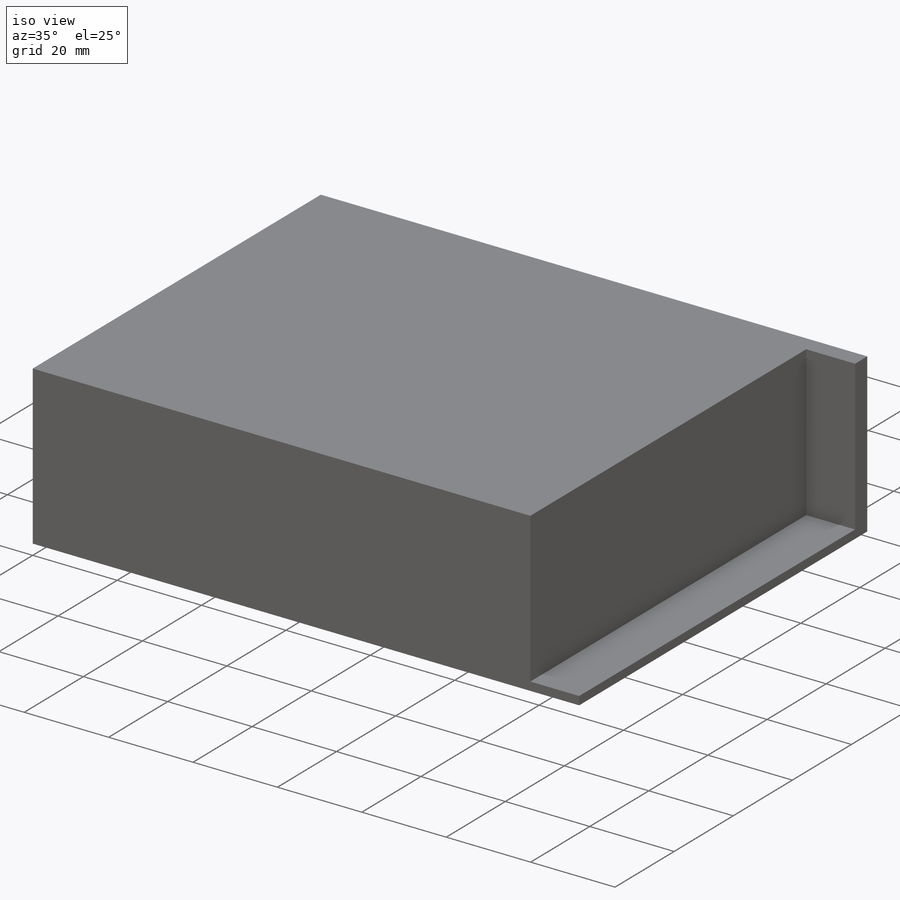
[diagram: iso view]
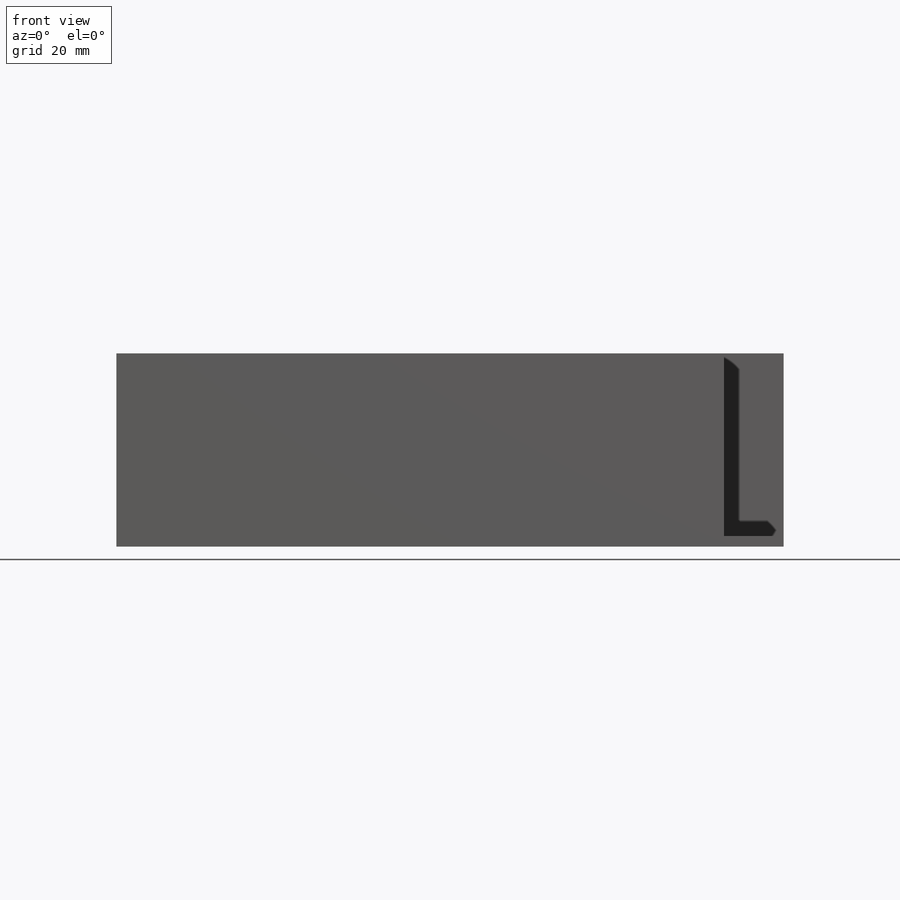
[diagram: front view]
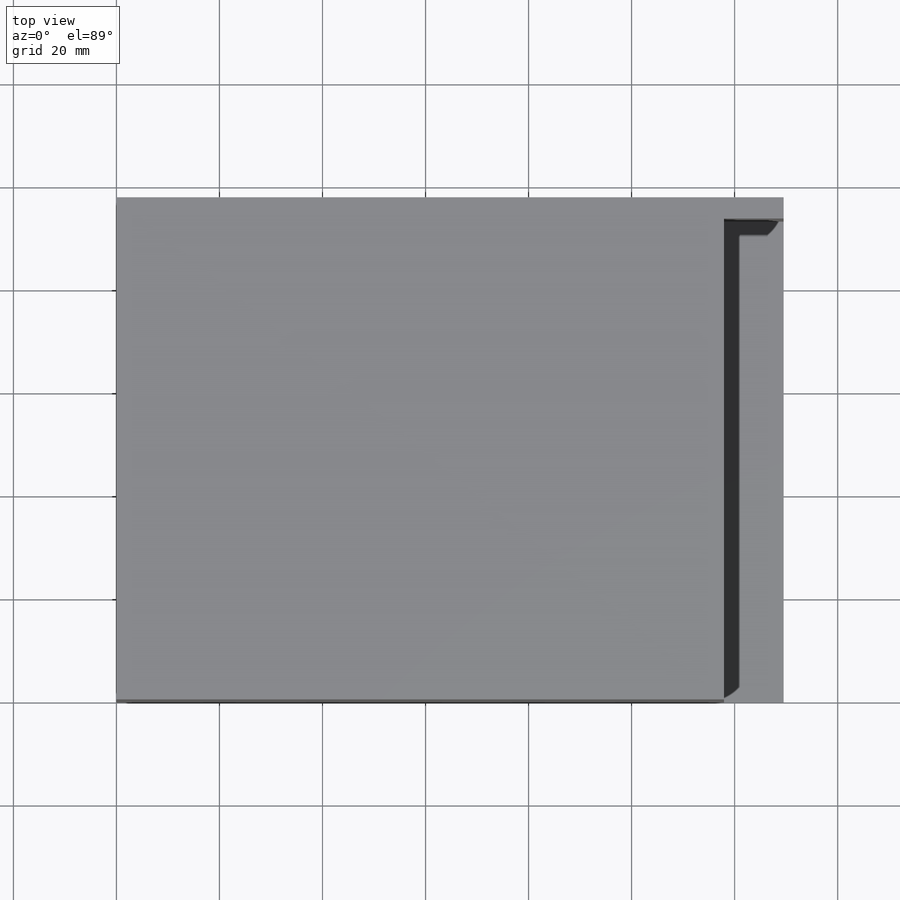
[diagram: top view]
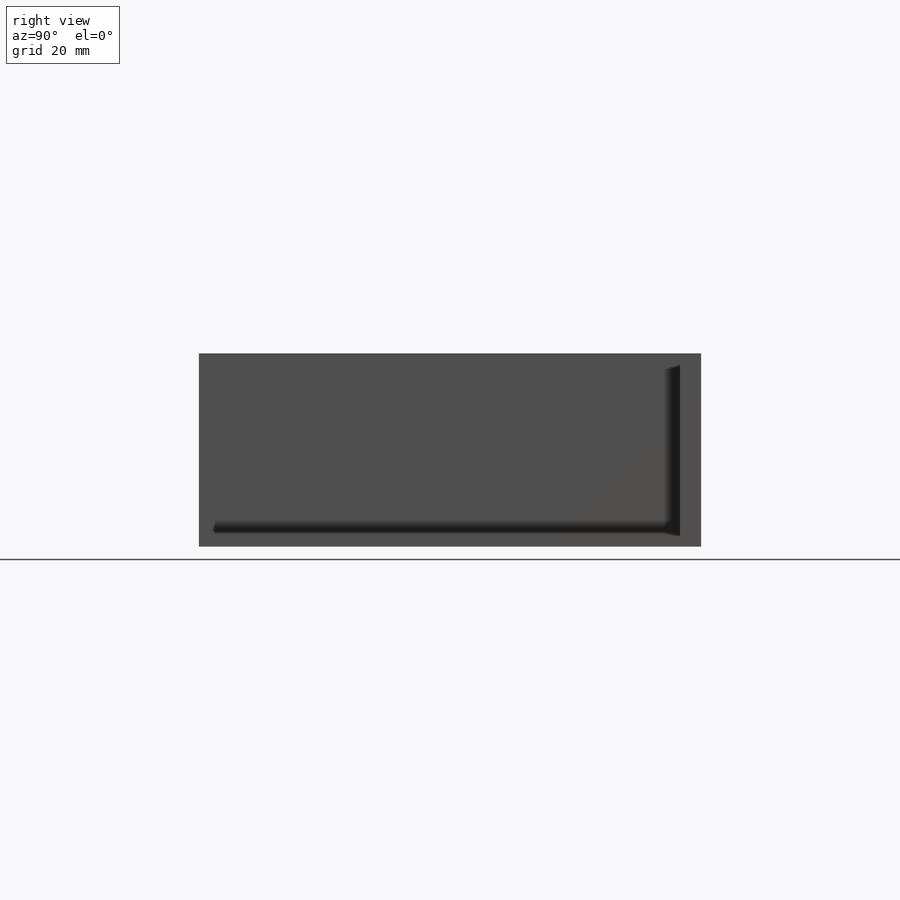
[diagram: right view]
SOLIDWORKS PART (.sldprt)
format: sldprt  version: not decoded by parser v0  size: 154,112 bytes
history: native  units: mm
features: sketch x4, material x1, extrude x1, hole x1, cut_extrude x1 (+12 scaffold rows collapsed)
feature tree (20):
  scaffold x12  (default folders/planes/origin — collapsed)
  material  "Material <not specified>"
  sketch  "Sketch1"  dims[D1=129.5mm D2=97.5mm]
  extrude  "Boss-Extrude1"  Depth=37.5mm
  hole  "M3 Clearance Hole1"  Diameter=3.4mm Depth=0.737mm
  sketch  "Sketch4"  dims[D1=30.75mm D2=33.0mm D3=78.0mm]
  sketch  "Sketch3"  dims[hole-wizard template sketch: 47 standard entries collapsed; hole parameters kept: c15.Hole Depth=0.737mm c15.D3=~14.816244mm c15.Drill Angle=118.0deg]
  sketch  "Sketch5"
  cut_extrude  "Cut-Extrude1"  Depth=35.5mm
decode coverage: 6 of 7 modeling features carry decoded parameters
note: ~ marks probable driven/reference dimensions
note: suppression state not decoded; provenance and decode notes live in map.json
